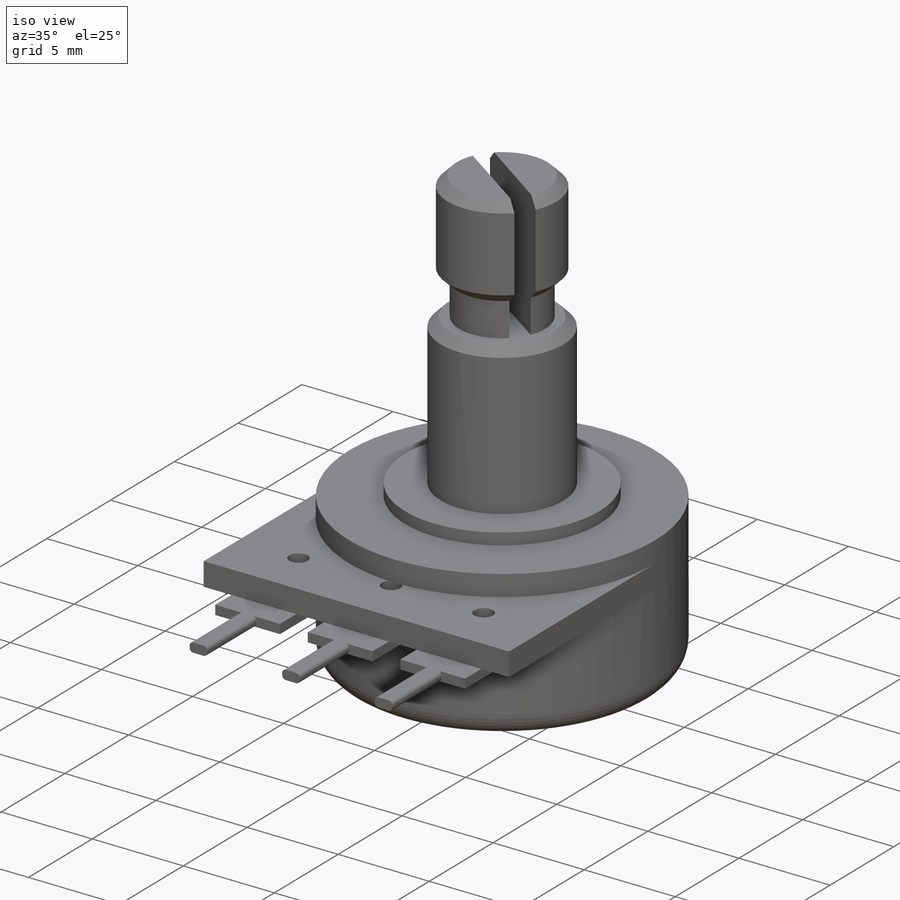
[diagram: iso view]
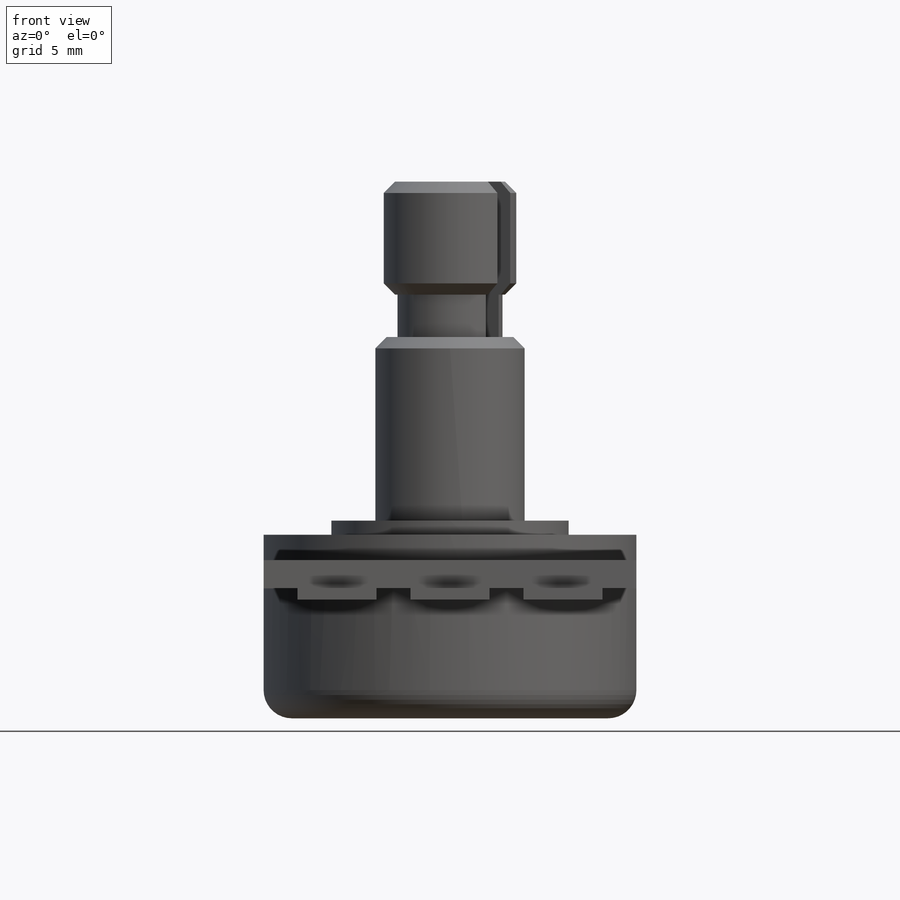
[diagram: front view]
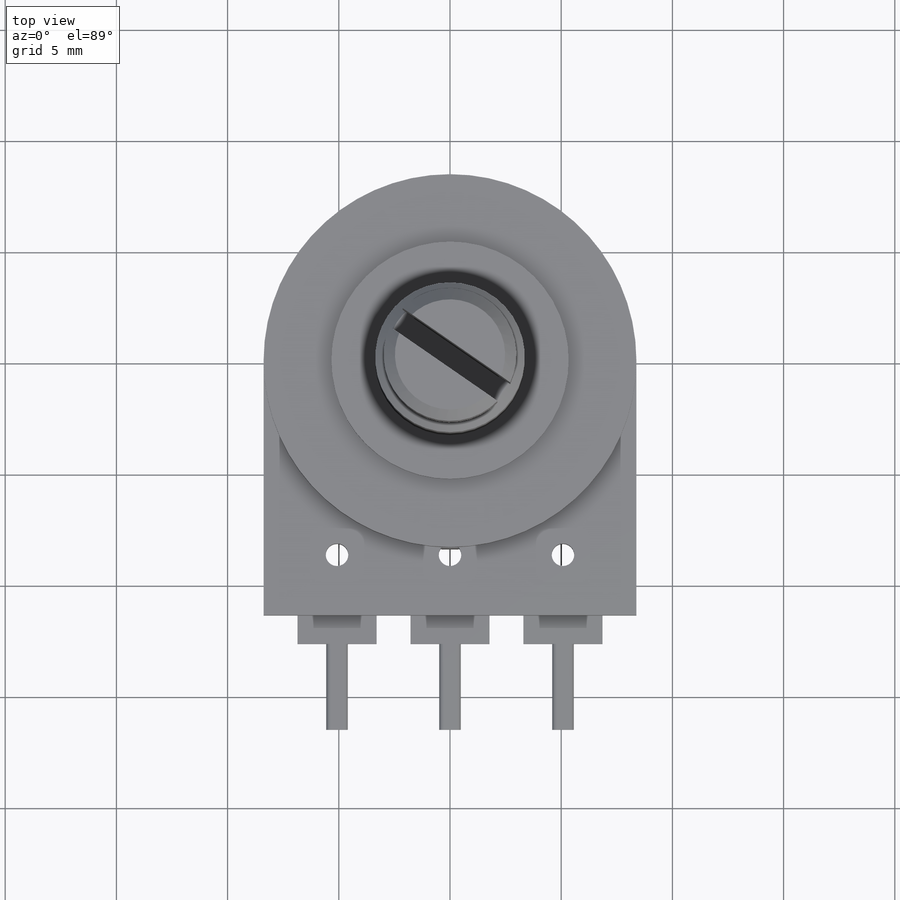
[diagram: top view]
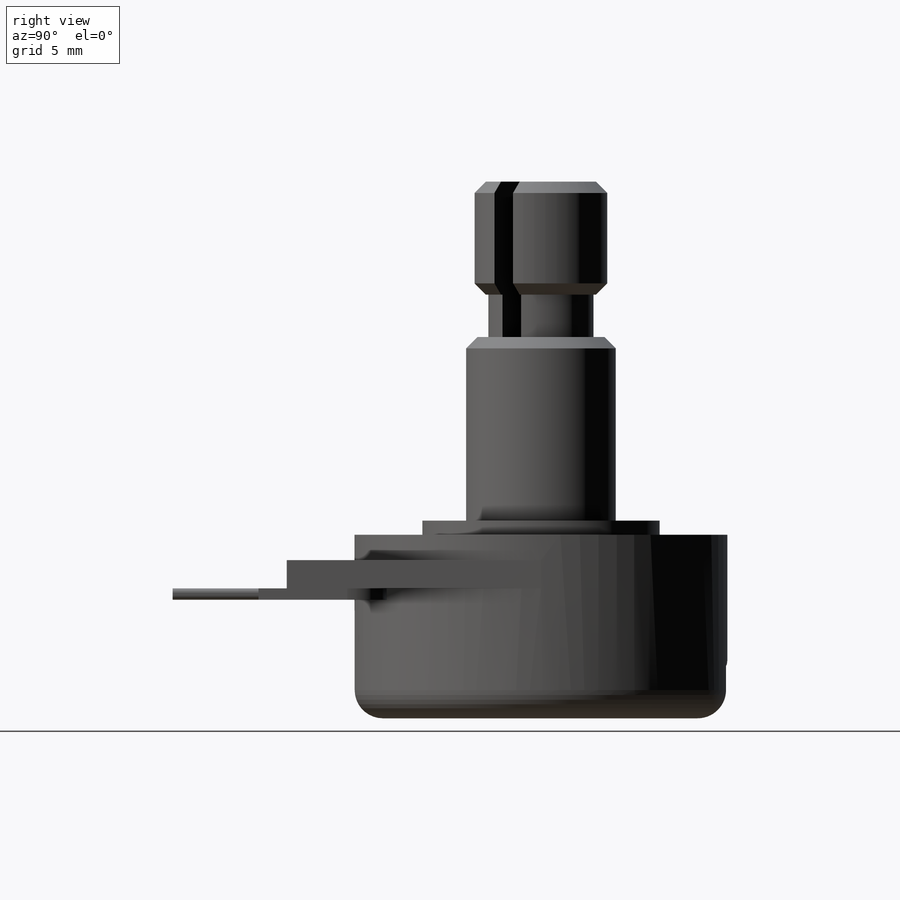
[diagram: right view]
SOLIDWORKS PART (.sldprt)
format: sldprt  version: not decoded by parser v0  size: 370,688 bytes
history: native  units: mm
features: sketch x7, cut_extrude x4, fillet x3, extrude x2, pattern_linear x2, material x1, plane x1, revolve x1, chamfer x1 (+13 scaffold rows collapsed; 1 parser-record rows omitted)
feature tree (36):
  parser-record x1  (decoder bookkeeping rows leaked as tree rows — omitted from the tree; the rows remain in map.json)
  scaffold x13  (default folders/planes/origin — collapsed)
  material  "Material <not specified>"
  plane  "Side"
  sketch  "Sketch1"  dims[D1=24.13mm D2=5.08mm D3=15.24mm D4=1.905mm D5=2.9845mm D6=2.3622mm D7=3.3655mm D8=8.382mm]
  revolve  "Base-Revolve"  Angle=360deg
  sketch  "Sketch2"  dims[D1=1.27mm D2=5.842mm]
  extrude  "Boss-Extrude1"  Depth=11.43mm
  sketch  "Sketch3"  dims[c1.D1=16.764mm c1.D3=16.764mm c1.D5=1.778mm c1.D6=1.016mm c2.D1=24.9428mm c2.D2=3.81mm c2.D3=5.842mm c3.D2=0.9652mm c3.D4=3.556mm c3.D3=12.7mm c3.D5=5.7658mm]
  extrude  "Boss-Extrude2"  Depth=0.508mm
  sketch  "Sketch5"  dims[D1=10.668mm]
  cut_extrude  "Cut-Extrude2"  Depth=15.875mm
  pattern_linear  "LPattern1"  Count1=2 Count2=1 Spacing1=5.08mm Spacing2=50mm
  pattern_linear  "LPattern2"  Count1=2 Count2=1 Spacing1=5.08mm Spacing2=50mm
  sketch  "Sketch7"
  cut_extrude  "Cut-Extrude3"  [1 undecoded]
  sketch  "Sketch8"  dims[c1.D1=0.508mm c1.D2=1.016mm c1.D3=~4.617664mm c2.D3=~145.355459deg]
  cut_extrude  "Cut-Extrude4"  Depth=6.985mm
  chamfer  "Chamfer1"  Distance=0.508mm Angle=45deg
  fillet  "Fillet1"  Radius=1.27mm
  fillet  "Fillet2"  Radius=0.2mm
  sketch  "Sketch9"  dims[c1.D1=1.0mm c1.D2=1.0mm c1.D3=2.0mm c2.D3=~1.677355deg c3.D3=~1.918354mm c4.D3=~1.677355deg]
  cut_extrude  "Cut-Extrude5"  Depth=2mm
  fillet  "Fillet3"  Radius=0.6mm
decode coverage: 18 of 20 modeling features carry decoded parameters
note: ~ marks probable driven/reference dimensions
note: 1 parameter value undecoded
note: suppression state not decoded; provenance and decode notes live in map.json
